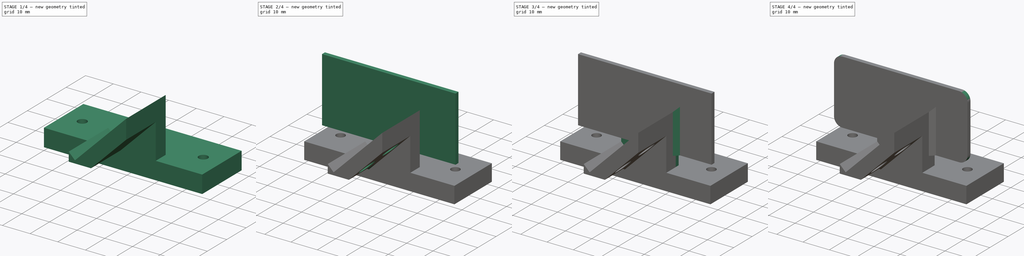
[diagram: build sequence overview — one tinted view per stage of 4, left to right]
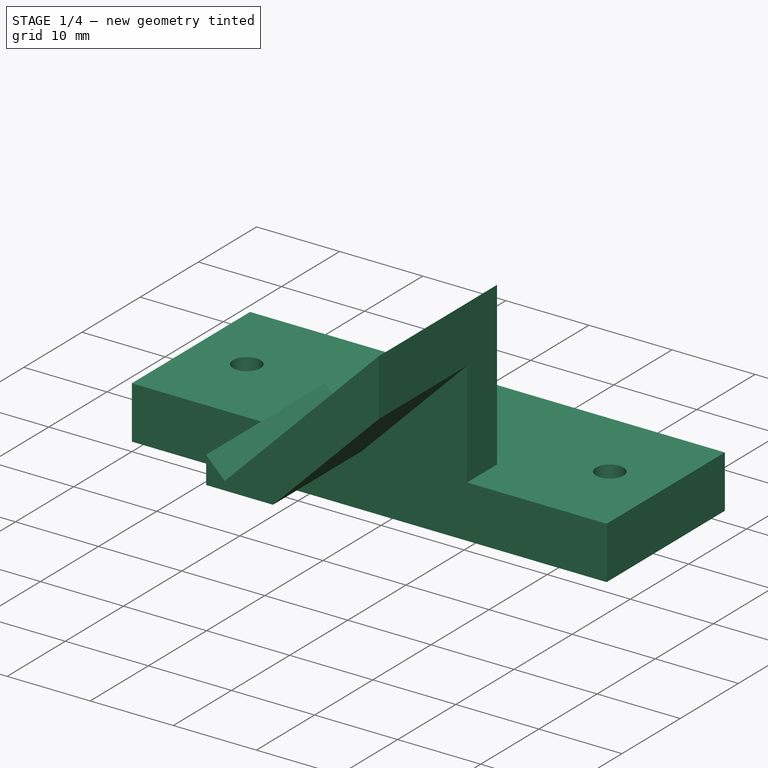
[diagram: stage 1 of 4 — iso view after this stage's code; geometry added in this stage tinted green]
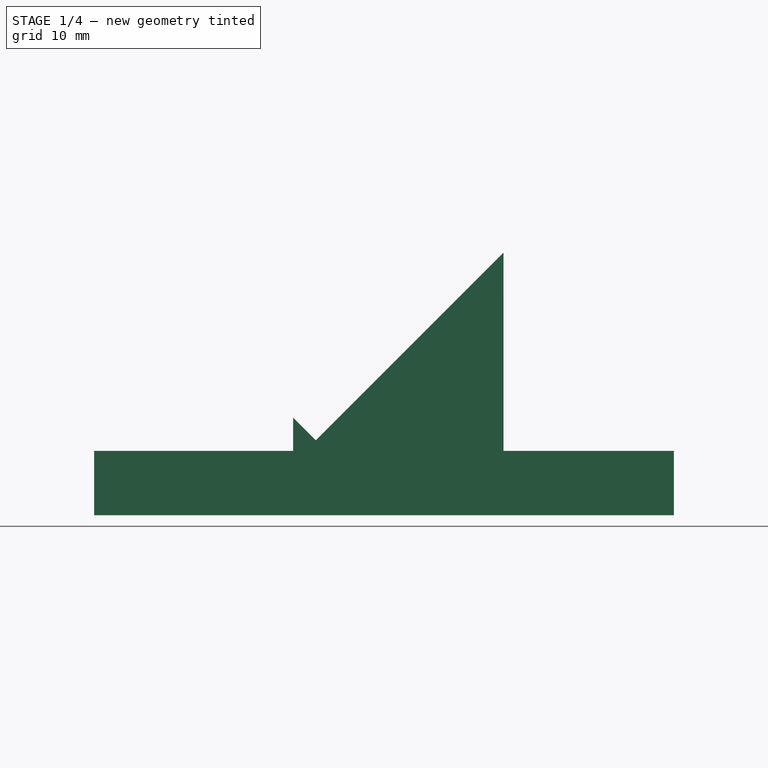
[diagram: stage 1 of 4 — front view after this stage's code; geometry added in this stage tinted green]
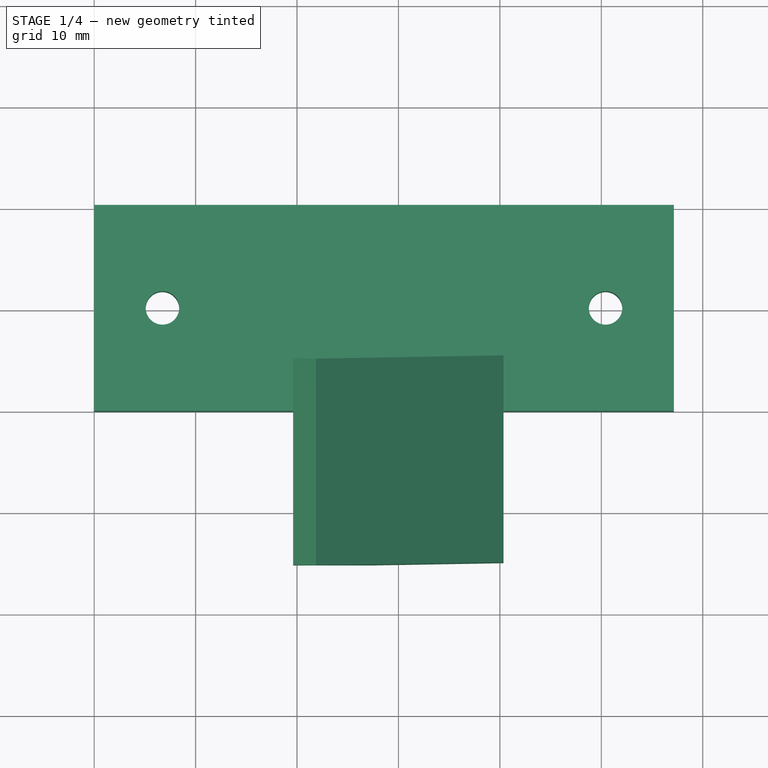
[diagram: stage 1 of 4 — top view after this stage's code; geometry added in this stage tinted green]
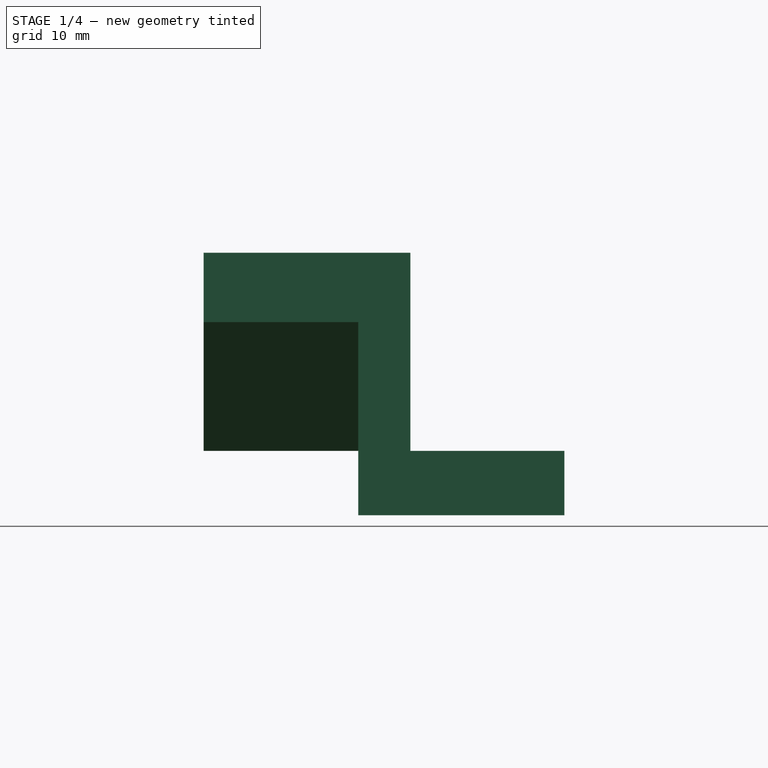
[diagram: stage 1 of 4 — right view after this stage's code; geometry added in this stage tinted green]
FCSTD DOCUMENT  (FreeCAD 0.18R16110 (Git))
Label: Mirror mount with perch v7.6
License: All rights reserved
LicenseURL: http://en.wikipedia.org/wiki/All_rights_reserved
objects: Sketcher::SketchObject×6, PartDesign::Pad×5, PartDesign::Chamfer×4, PartDesign::Fillet×2, Drawing::FeatureViewPart×2, PartDesign::Pocket×1, Spreadsheet::Sheet×1, PartDesign::Body×1, Drawing::FeaturePage×1
note: 25 computed .brp shape members not serialized (recipe doc carries the construction recipe); baked Part::Feature solids carry a one-line shape summary decoded from their .brp

FEATURE [Sketcher::SketchObject] Sketch  label="Mounting platform"
  MapMode = 5
  Support = -> [XY_Plane]
  expr: Constraints[9] = ss.w
  expr: Constraints[16] = (2.25in - 1.72in) / 2
  expr: Constraints[15] = (2.25in - 1.72in) / 2
  expr: Constraints[11] = 0.13in / 2
  sketch-geometry (6):
    g0: LineSegment StartX=0 StartY=20.32 StartZ=0 EndX=57.15 EndY=20.32 EndZ=0
    g1: LineSegment StartX=57.15 StartY=20.32 StartZ=0 EndX=57.15 EndY=0 EndZ=0
    g2: LineSegment StartX=57.15 StartY=0 StartZ=0 EndX=0 EndY=0 EndZ=0
    g3: LineSegment StartX=0 StartY=0 StartZ=0 EndX=0 EndY=20.32 EndZ=0
    g4: Circle CenterX=6.731 CenterY=10.16 CenterZ=0 NormalX=0 NormalY=0 NormalZ=1 AngleXU=0 Radius=1.651
    g5: Circle CenterX=50.419 CenterY=10.16 CenterZ=0 NormalX=0 NormalY=0 NormalZ=1 AngleXU=0 Radius=1.651
  constraints (17):
    c: Coincident(g0,g1)
    c: Coincident(g1,g2)
    c: Coincident(g2,g3)
    c: Coincident(g3,g0)
    c: Horizontal(g0)
    c: Horizontal(g2)
    c: Vertical(g1)
    c: Vertical(g3)
    c: Coincident(g2,g-1)
    c: Distance(g0) = 57.15
    c: Distance(g1) = 20.32
    c: Radius(g4) = 1.651
    c: Equal(g4,g5)
    c: DistanceY(g5,g4) = 0
    c: DistanceY(g-1,g4) = 10.16
    c: DistanceX(g4) = 6.731
    c: DistanceX(g5,g1) = 6.731
FEATURE [PartDesign::Pad] Pad
  Length = 6.35
  Length2 = 99.9998
  Midplane = true
  Profile = -> Sketch
  Type = 0
FEATURE [Sketcher::SketchObject] Sketch003  label="Mirror mount"
  MapMode = 5
  Placement = pos=(0,0,0) rot=(1,0,0;1.5708rad)
  expr: Constraints[7] = ss.xMirror
  expr: Constraints[14] = 3.2mm
  sketch-geometry (7):
    g0: LineSegment StartX=40.3568 StartY=3.175 StartZ=0 EndX=40.3568 EndY=22.7116 EndZ=0
    g1: LineSegment StartX=40.3568 StartY=22.7116 StartZ=0 EndX=21.8575 EndY=4.21226 EndZ=0
    g2: LineSegment StartX=21.8575 StartY=4.21226 StartZ=0 EndX=19.6124 EndY=6.45732 EndZ=0
    g3: LineSegment StartX=19.6124 StartY=6.45732 StartZ=0 EndX=19.6124 EndY=3.175 EndZ=0
    g4: LineSegment [constr] StartX=21.8575 StartY=4.21226 StartZ=0 EndX=19.5947 EndY=6.475 EndZ=0
    g5: LineSegment StartX=19.6124 StartY=3.175 StartZ=0 EndX=40.3568 EndY=3.175 EndZ=0
    g6: LineSegment [constr] StartX=19.5947 StartY=6.475 StartZ=0 EndX=37.5553 EndY=24.4355 EndZ=0
  constraints (21):
    c: Coincident(g2,g3)
    c: Perpendicular(g1,g2)
    c: Distance(g1) = 26.162
    c: Vertical(g3)
    c: Vertical(g0)
    c: Coincident(g1,g4)
    c: Parallel(g4,g2)
    c: DistanceX(g-1,g4) = 19.5947
    c: DistanceY(g3,g4) = 3.3
    c: Coincident(g0,g5)
    c: Coincident(g3,g5)
    c: Horizontal(g5)
    c: DistanceY(g-1,g3) = 3.175
    c: Coincident(g1,g2)
    c: Distance(g4) = 3.2
    c: Angle(g5,g1) = 0.785398
    c: Coincident(g1,g0)
    c: Distance(g2) = 3.175
    c: Distance(g6) = 25.4
    c: Coincident(g6,g4)
    c: Perpendicular(g4,g6)
FEATURE [PartDesign::Pad] Pad002
  BaseFeature = -> Pad
  Length = 15.24
  Length2 = 5.1402
  Profile = -> Sketch003
  Type = 4
  expr: Length2 = ss.dyWall
FEATURE [PartDesign::Chamfer] Chamfer
  Base = -> Pad002 [Edge31]
  BaseFeature = -> Pad002
  Size = 12.7
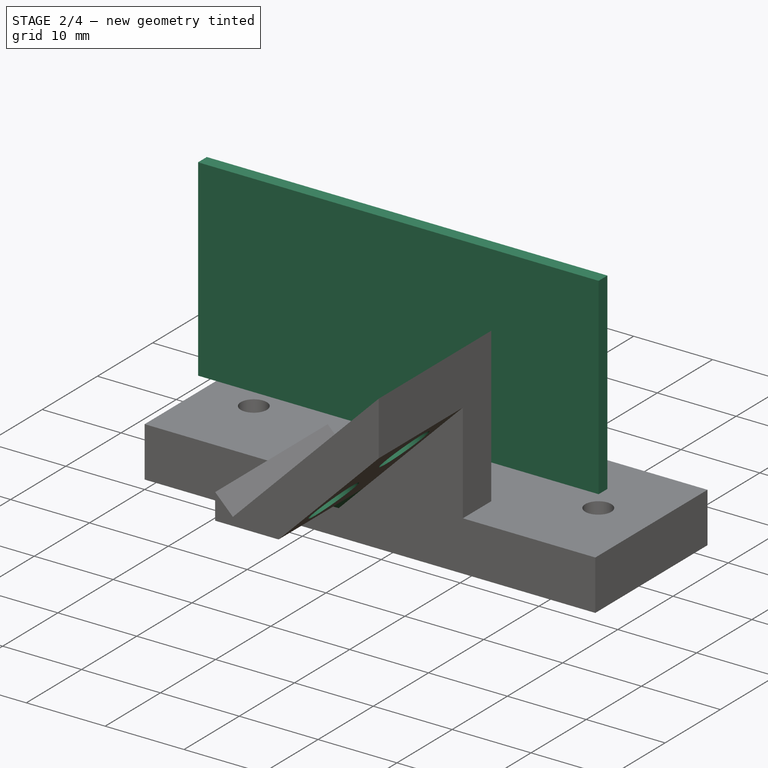
[diagram: stage 2 of 4 — iso view after this stage's code; geometry added in this stage tinted green]
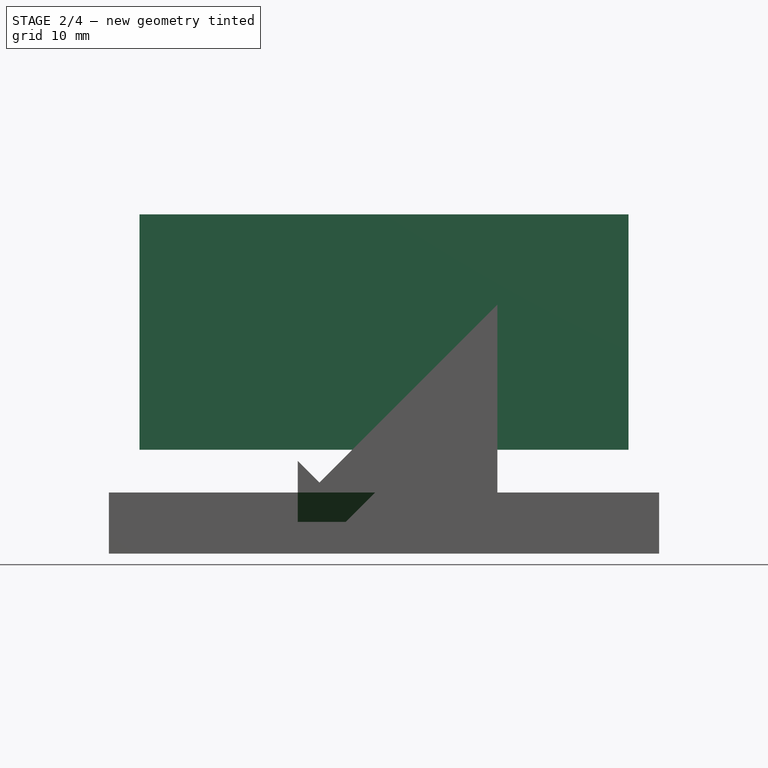
[diagram: stage 2 of 4 — front view after this stage's code; geometry added in this stage tinted green]
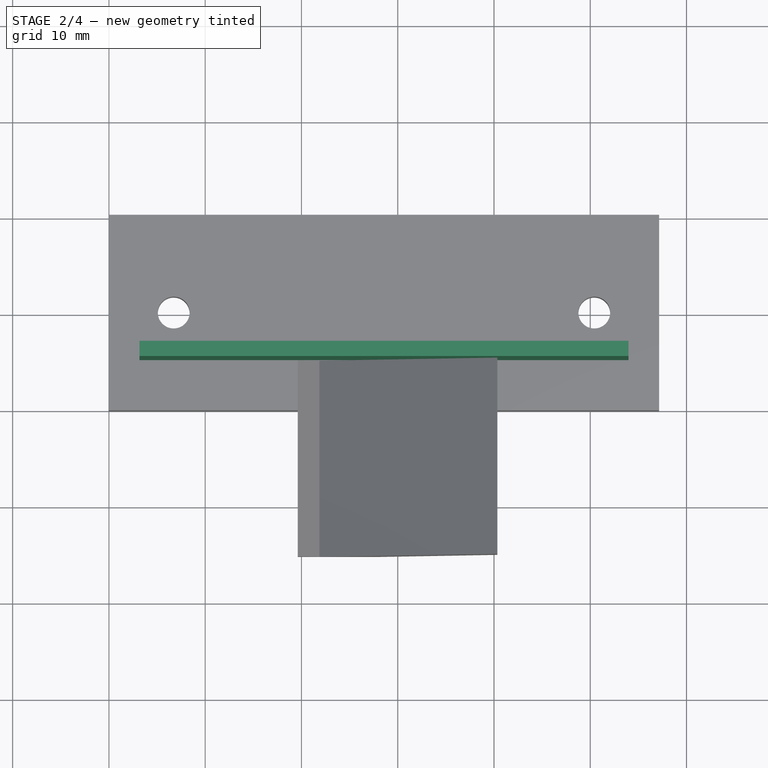
[diagram: stage 2 of 4 — top view after this stage's code; geometry added in this stage tinted green]
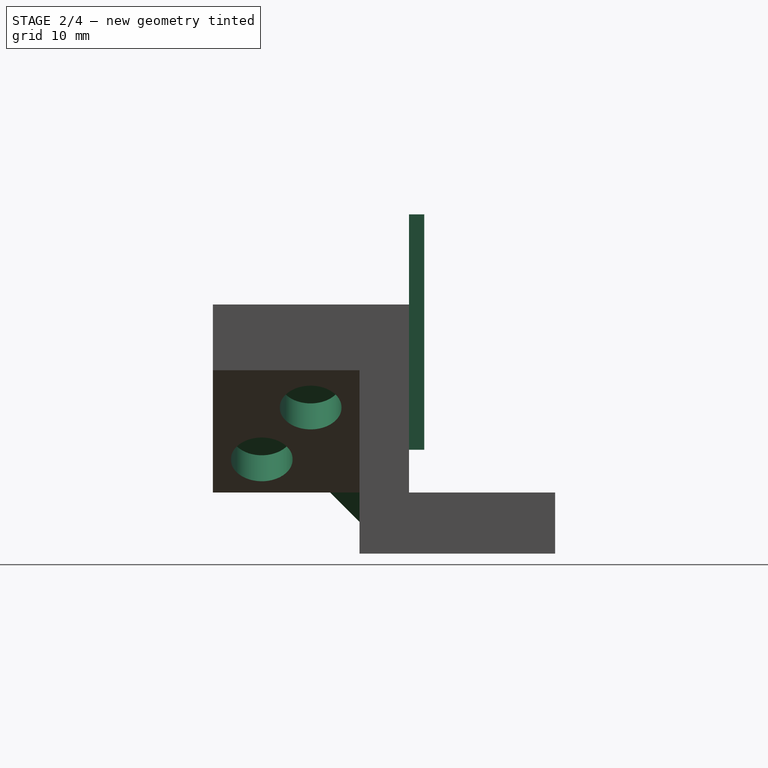
[diagram: stage 2 of 4 — right view after this stage's code; geometry added in this stage tinted green]
FEATURE [PartDesign::Chamfer] Chamfer001
  Base = -> Chamfer [Edge1]
  BaseFeature = -> Chamfer
  Size = 3.048
FEATURE [Sketcher::SketchObject] Sketch004  label="Magnet holes"
  MapMode = 5
  Placement = pos=(12.2409,-5.9e-15,-12.2409) rot=(0.678598,0.678598,0.281085;2.59356rad)
  Support = -> [Chamfer001]
  expr: Constraints[0] = (0.25in + 0.003in) / 2
  sketch-geometry (2):
    g0: Circle CenterX=-10.16 CenterY=26.67 CenterZ=0 NormalX=0 NormalY=0 NormalZ=1 AngleXU=0 Radius=3.2131
    g1: Circle CenterX=-5.08 CenterY=34.29 CenterZ=0 NormalX=0 NormalY=0 NormalZ=1 AngleXU=0 Radius=3.2131
  constraints (6):
    c: Radius(g0) = 3.2131
    c: Equal(g0,g1)
    c: DistanceX(g0,g-1) = 10.16
    c: DistanceY(g-1,g0) = 26.67
    c: DistanceX(g0,g1) = 5.08
    c: DistanceY(g0,g1) = 7.62
FEATURE [PartDesign::Pocket] Pocket001
  BaseFeature = -> Chamfer001
  Length = 3.81762
  Length2 = 99.9998
  Profile = -> Sketch004
  Type = 0
  expr: Length = 0.1903" - 0.04"
FEATURE [Spreadsheet::Sheet] Spreadsheet  label="ss"
  cells = A1=Wall displacement; B1(dyWall)==1mm + 0.163"; A2=Post displacement; B2(dyPost)==1mm + 0.4"; A3=Mount width; B3(w)==2.25"; A4=Wall thickness; B4(Wt)==0.0625"; A5=Wall height; B5(Wh)==1" + 1.5mm + 2mm; A6=Base thickness; B6(Bt)==0.25"; A7=Acrylic gap; B7(AGt)==0.125" + 0.05"; A8=Perch height; B8(Ph)==17.7165mm + 0.5mm + 6.5mm; A9=Mirror start point; B9(xMirror)==(2.25" - 1" / sqrt(2)) / 2
FEATURE [Sketcher::SketchObject] Sketch005  label="Wall"
  AttachmentOffset = pos=(0,0,28.575) rot=(0,0,1;0rad)
  MapMode = 5
  Placement = pos=(28.575,-6.3e-15,6.3e-15) rot=(0.57735,0.57735,0.57735;2.0944rad)
  Support = -> [YZ_Plane]
  expr: Constraints[37] = ss.Bt / 2 + ss.Ph
  expr: Constraints[35] = ss.Bt / 2 + ss.AGt
  expr: Constraints[34] = ss.dyWall
  expr: Constraints[33] = ss.dyPost
  expr: Constraints[27] = ss.Wh + ss.Bt / 2
  expr: Constraints[26] = ss.Wt
  expr: AttachmentOffset.Base.z = ss.w / 2
  sketch-geometry (13):
    g0: LineSegment StartX=6.7277 StartY=25.8405 StartZ=0 EndX=6.7277 EndY=32.075 EndZ=0
    g1: LineSegment StartX=6.7277 StartY=32.075 StartZ=0 EndX=5.1402 EndY=32.075 EndZ=0
    g2: LineSegment StartX=5.1402 StartY=32.075 StartZ=0 EndX=5.1402 EndY=7.62 EndZ=0
    g3: LineSegment StartX=5.1402 StartY=7.62 StartZ=0 EndX=6.7277 EndY=7.62 EndZ=0
    g4: LineSegment StartX=6.7277 StartY=7.62 StartZ=0 EndX=6.7277 EndY=24.253 EndZ=0
    g5: ArcOfCircle [constr] CenterX=6.7277 CenterY=29.479 CenterZ=0 NormalX=0 NormalY=0 NormalZ=1 AngleXU=0 Radius=5.22605 StartAngle=4.71239 EndAngle=6.28318
    g6: ArcOfCircle [constr] CenterX=6.7277 CenterY=29.479 CenterZ=0 NormalX=0 NormalY=0 NormalZ=1 AngleXU=0 Radius=3.63855 StartAngle=4.71239 EndAngle=6.28319
    g7: LineSegment [constr] StartX=11.9537 StartY=29.479 StartZ=0 EndX=11.9537 EndY=27.8915 EndZ=0
    g8: LineSegment [constr] StartX=10.3663 StartY=29.479 StartZ=0 EndX=10.3663 EndY=27.8915 EndZ=0
    g9: LineSegment [constr] StartX=10.3663 StartY=27.8915 StartZ=0 EndX=11.9537 EndY=27.8915 EndZ=0
    g10: LineSegment StartX=6.7277 StartY=25.8405 StartZ=0 EndX=6.7277 EndY=24.253 EndZ=0
    g11: LineSegment [constr] StartX=10.3663 StartY=27.8915 StartZ=0 EndX=11.16 EndY=27.8915 EndZ=0
    g12: LineSegment [constr] StartX=11.16 StartY=27.8915 StartZ=0 EndX=11.9537 EndY=27.8915 EndZ=0
  constraints (38):
    c: Coincident(g0,g1)
    c: Coincident(g1,g2)
    c: Coincident(g2,g3)
    c: Coincident(g3,g4)
    c: Coincident(g0,g6)
    c: PointOnObject(g6,g0)
    c: PointOnObject(g5,g4)
    c: Coincident(g4,g5)
    c: Vertical(g0)
    c: Vertical(g4)
    c: Vertical(g2)
    c: Horizontal(g3)
    c: Horizontal(g1)
    c: Coincident(g5,g7)
    c: Vertical(g7)
    c: Coincident(g5,g6)
    c: DistanceY(g5,g6) = 0
    c: Coincident(g8,g9)
    c: Coincident(g6,g8)
    c: Coincident(g7,g9)
    c: Horizontal(g9)
    c: Vertical(g8)
    c: Coincident(g4,g10)
    c: Coincident(g0,g10)
    c: Equal(g3,g10)
    c: Equal(g10,g9)
    c: DistanceX(g3,g3) = 1.5875
    c: DistanceY(g1) = 32.075
    c: Coincident(g11,g12)
    c: Coincident(g8,g11)
    c: Coincident(g12,g7)
    c: Equal(g11,g12)
    c: PointOnObject(g11,g9)
    c: DistanceX(g11) = 11.16
    c: DistanceX(g1) = 5.1402
    c: DistanceY(g2) = 7.62
    c: Equal(g9,g8)
    c: DistanceY(g12) = 27.8915
FEATURE [PartDesign::Pad] Pad003
  BaseFeature = -> Pocket001
  Length = 50.8
  Length2 = 100
  Midplane = true
  Profile = -> Sketch005
  Type = 0
  expr: Length = 2"
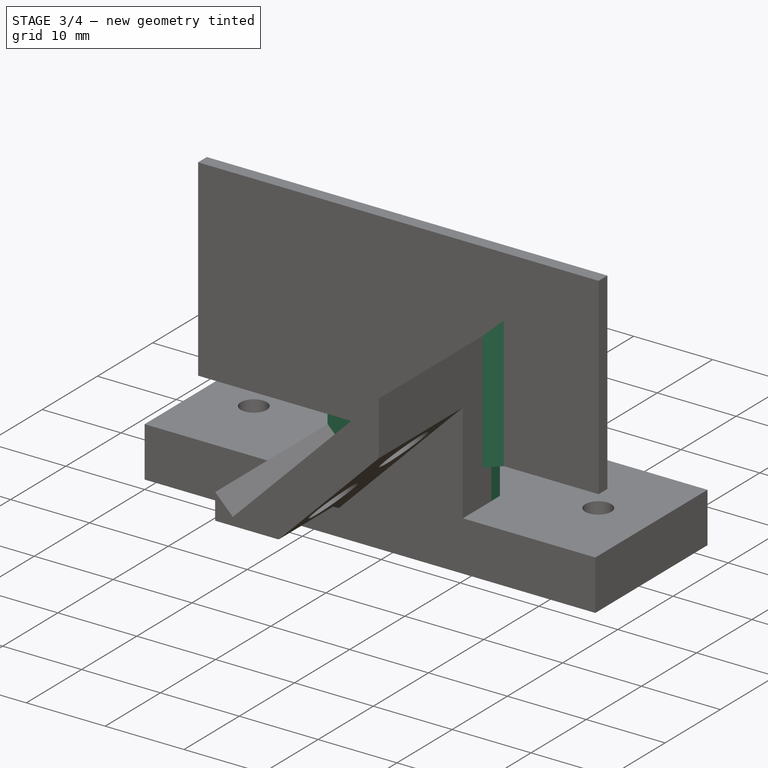
[diagram: stage 3 of 4 — iso view after this stage's code; geometry added in this stage tinted green]
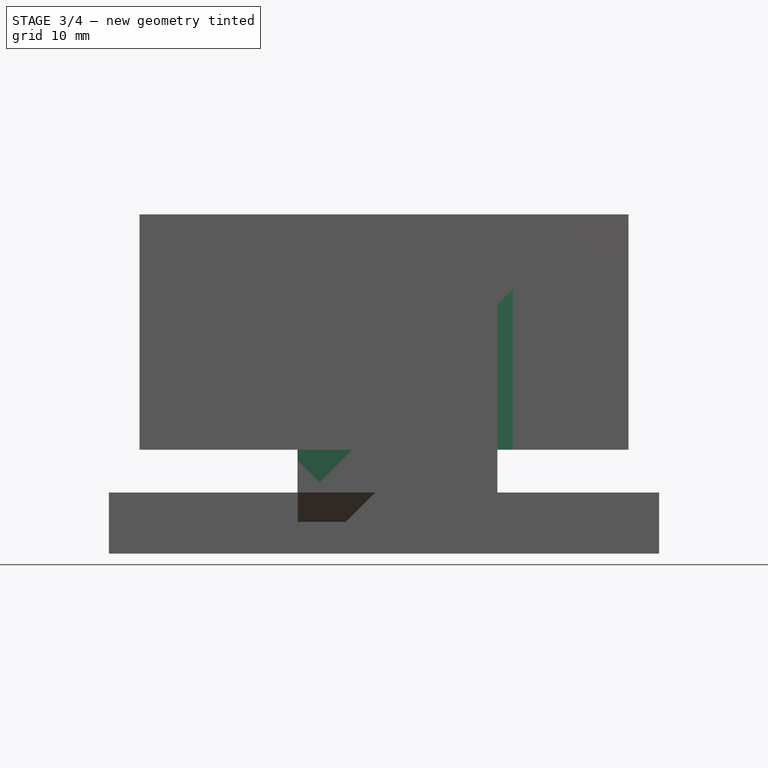
[diagram: stage 3 of 4 — front view after this stage's code; geometry added in this stage tinted green]
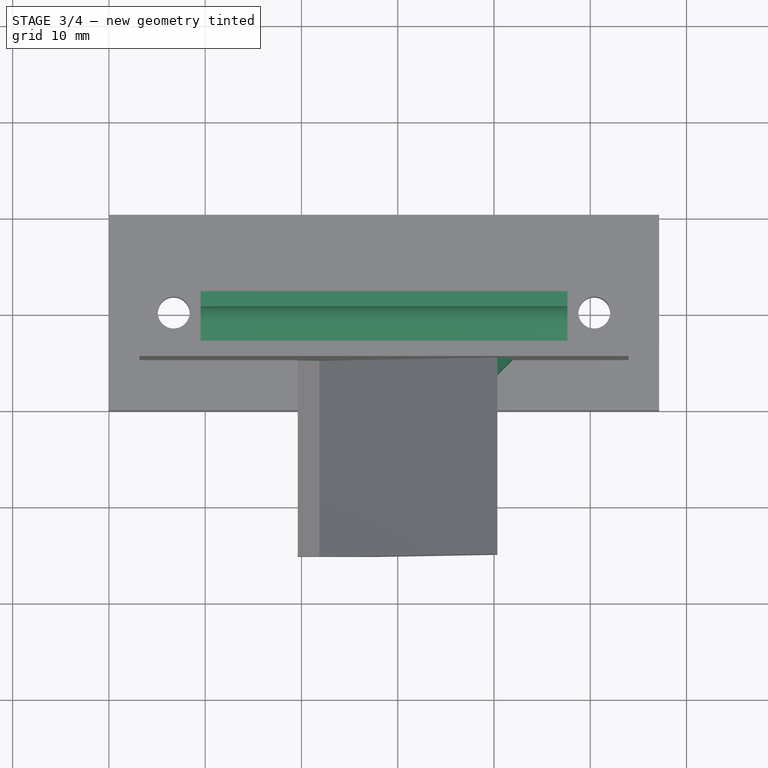
[diagram: stage 3 of 4 — top view after this stage's code; geometry added in this stage tinted green]
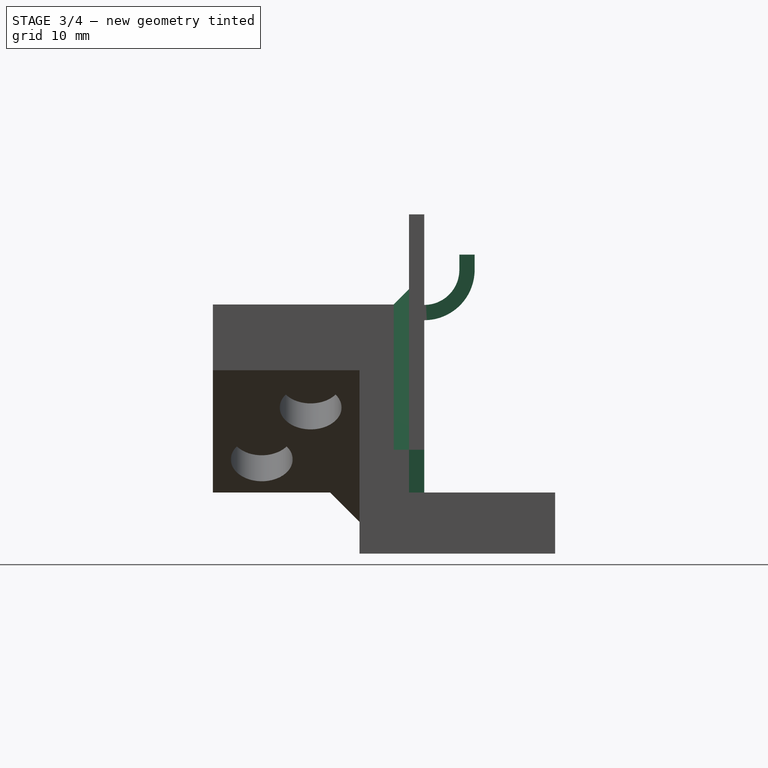
[diagram: stage 3 of 4 — right view after this stage's code; geometry added in this stage tinted green]
FEATURE [Sketcher::SketchObject] Sketch006  label="Wall bottom"
  MapMode = 5
  Placement = pos=(0,5.1402,-1e-15) rot=(0,0.707107,0.707107;3.14159rad)
  expr: Constraints[11] = ss.AGt
  expr: Constraints[10] = (1.03" + 0.125") / sqrt(2)
  expr: Constraints[9] = ss.Bt / 2
  expr: Constraints[7] = -ss.xMirror
  sketch-geometry (4):
    g0: LineSegment StartX=-40.3391 StartY=7.62 StartZ=0 EndX=-19.5947 EndY=7.62 EndZ=0
    g1: LineSegment StartX=-19.5947 StartY=3.175 StartZ=0 EndX=-40.3391 EndY=3.175 EndZ=0
    g2: LineSegment StartX=-40.3391 StartY=3.175 StartZ=0 EndX=-40.3391 EndY=7.62 EndZ=0
    g3: LineSegment StartX=-19.5947 StartY=7.62 StartZ=0 EndX=-19.5947 EndY=3.175 EndZ=0
  constraints (12):
    c: Coincident(g1,g2)
    c: Coincident(g2,g0)
    c: Horizontal(g0)
    c: Horizontal(g1)
    c: Vertical(g2)
    c: Coincident(g0,g3)
    c: Coincident(g1,g3)
    c: DistanceX(g1) = -19.5947
    c: Vertical(g3)
    c: DistanceY(g1) = 3.175
    c: DistanceX(g1,g1) = 20.7444
    c: DistanceY(g2,g2) = 4.445
FEATURE [PartDesign::Pad] Pad004
  BaseFeature = -> Pad003
  Length = 1.5875
  Length2 = 100
  Profile = -> Sketch006
  Type = 0
  expr: Length = ss.Wt
FEATURE [Sketcher::SketchObject] Sketch007  label="Perch"
  AttachmentOffset = pos=(0,0,28.575) rot=(0,0,1;0rad)
  MapMode = 5
  Placement = pos=(28.575,-6.3e-15,6.3e-15) rot=(0.57735,0.57735,0.57735;2.0944rad)
  Support = -> [YZ_Plane]
  expr: Constraints[36] = ss.Bt / 2 + ss.Ph
  expr: Constraints[33] = ss.Bt / 2 + 0.125" + 0.01"
  expr: Constraints[32] = ss.dyWall
  expr: Constraints[31] = ss.dyPost
  expr: Constraints[25] = ss.Wh + ss.Bt / 2
  expr: Constraints[24] = ss.Wt
  expr: AttachmentOffset.Base.z = ss.w / 2
  sketch-geometry (13):
    g0: LineSegment [constr] StartX=6.7277 StartY=22.6655 StartZ=0 EndX=6.7277 EndY=32.075 EndZ=0
    g1: LineSegment [constr] StartX=6.7277 StartY=32.075 StartZ=0 EndX=5.1402 EndY=32.075 EndZ=0
    g2: LineSegment [constr] StartX=5.1402 StartY=32.075 StartZ=0 EndX=5.1402 EndY=6.604 EndZ=0
    g3: LineSegment [constr] StartX=5.1402 StartY=6.604 StartZ=0 EndX=6.7277 EndY=6.604 EndZ=0
    g4: LineSegment [constr] StartX=6.7277 StartY=6.604 StartZ=0 EndX=6.7277 EndY=21.078 EndZ=0
    g5: ArcOfCircle CenterX=6.7277 CenterY=26.304 CenterZ=0 NormalX=0 NormalY=0 NormalZ=1 AngleXU=0 Radius=5.22605 StartAngle=4.71239 EndAngle=6.28319
    g6: ArcOfCircle CenterX=6.7277 CenterY=26.304 CenterZ=0 NormalX=0 NormalY=0 NormalZ=1 AngleXU=0 Radius=3.63855 StartAngle=4.71239 EndAngle=6.28319
    g7: LineSegment StartX=11.9537 StartY=26.304 StartZ=0 EndX=11.9537 EndY=27.8915 EndZ=0
    g8: LineSegment StartX=10.3662 StartY=26.304 StartZ=0 EndX=10.3662 EndY=27.8915 EndZ=0
    g9: LineSegment StartX=10.3662 StartY=27.8915 StartZ=0 EndX=11.9537 EndY=27.8915 EndZ=0
    g10: LineSegment StartX=6.7277 StartY=22.6655 StartZ=0 EndX=6.7277 EndY=21.078 EndZ=0
    g11: LineSegment [constr] StartX=10.3662 StartY=27.8915 StartZ=0 EndX=11.16 EndY=27.8915 EndZ=0
    g12: LineSegment [constr] StartX=11.16 StartY=27.8915 StartZ=0 EndX=11.9537 EndY=27.8915 EndZ=0
  constraints (38):
    c: Coincident(g0,g1)
    c: Coincident(g1,g2)
    c: Coincident(g2,g3)
    c: Coincident(g3,g4)
    c: Coincident(g0,g6)
    c: PointOnObject(g6,g0)
    c: PointOnObject(g5,g4)
    c: Coincident(g4,g5)
    c: Vertical(g0)
    c: Vertical(g4)
    c: Vertical(g2)
    c: Horizontal(g3)
    c: Horizontal(g1)
    c: Coincident(g5,g7)
    c: Coincident(g5,g6)
    c: DistanceY(g5,g6) = 0
    c: Coincident(g8,g9)
    c: Coincident(g6,g8)
    c: Coincident(g7,g9)
    c: Horizontal(g9)
    c: Coincident(g4,g10)
    c: Coincident(g0,g10)
    c: Equal(g3,g10)
    c: Equal(g10,g9)
    c: DistanceX(g3,g3) = 1.5875
    c: DistanceY(g1) = 32.075
    c: Coincident(g11,g12)
    c: Coincident(g8,g11)
    c: Coincident(g12,g7)
    c: Equal(g11,g12)
    c: PointOnObject(g11,g9)
    c: DistanceX(g11) = 11.16
    c: DistanceX(g1) = 5.1402
    c: DistanceY(g2) = 6.604
    c: Equal(g8,g9)
    c: Vertical(g8)
    c: DistanceY(g-1,g8) = 27.8915
    c: Vertical(g7)
FEATURE [PartDesign::Pad] Pad005
  BaseFeature = -> Pad004
  Length = 38.1
  Length2 = 100
  Midplane = true
  Profile = -> Sketch007
  Type = 0
FEATURE [PartDesign::Chamfer] Chamfer002
  Base = -> Pad005 [Edge22]
  BaseFeature = -> Pad005
  Size = 1.5875
  expr: Size = ss.Wt
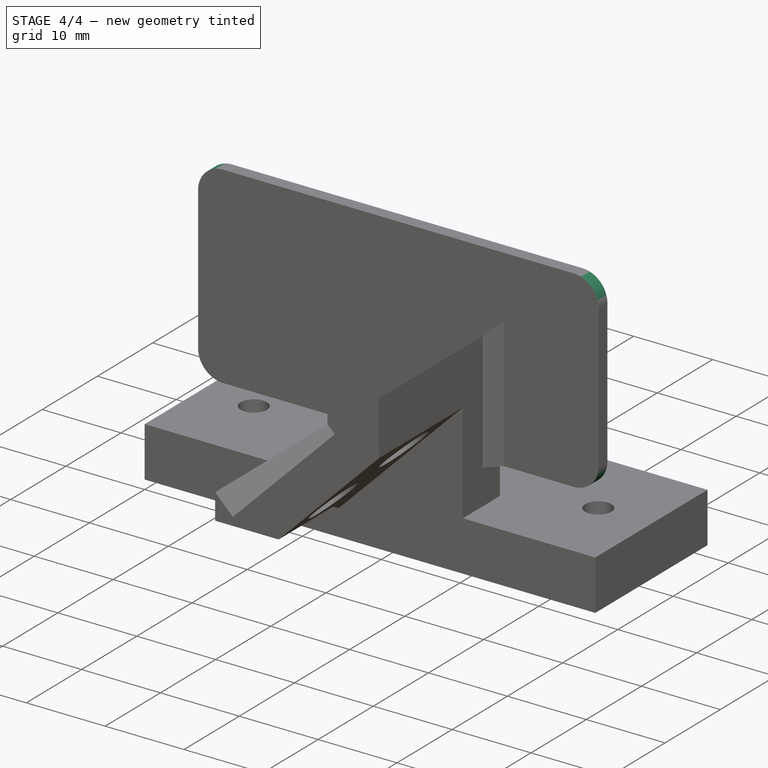
[diagram: stage 4 of 4 — iso view after this stage's code; geometry added in this stage tinted green]
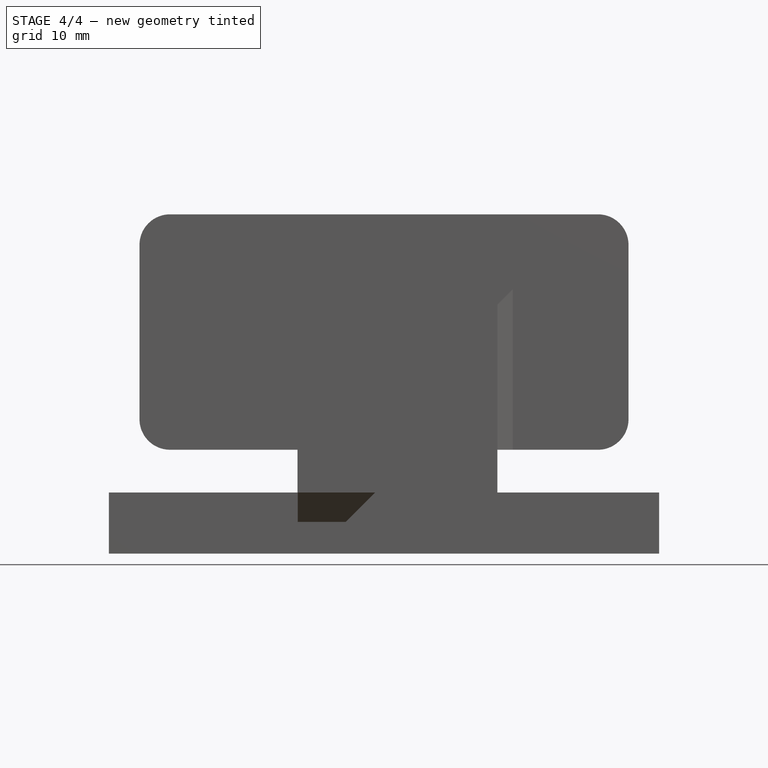
[diagram: stage 4 of 4 — front view after this stage's code; geometry added in this stage tinted green]
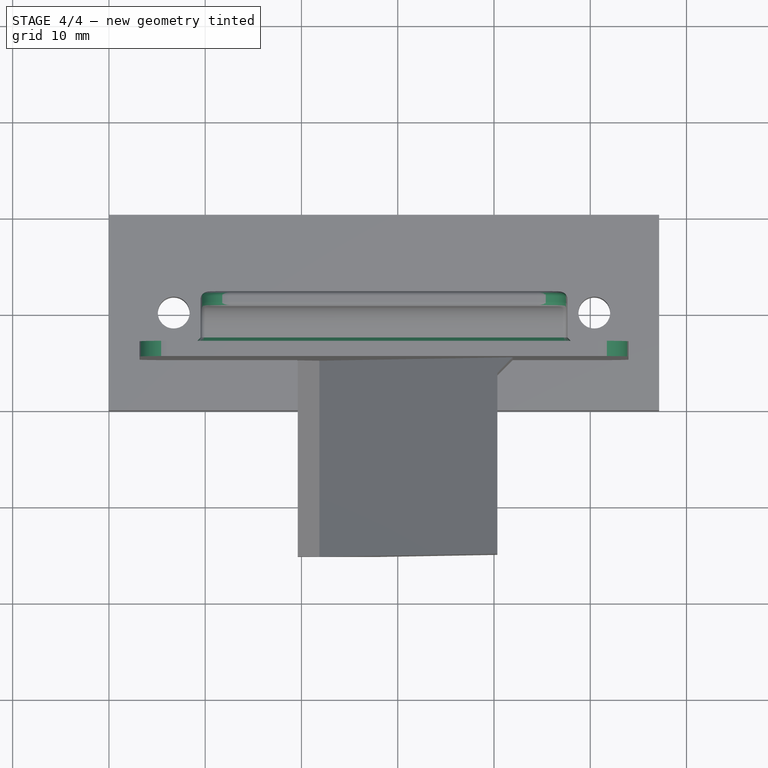
[diagram: stage 4 of 4 — top view after this stage's code; geometry added in this stage tinted green]
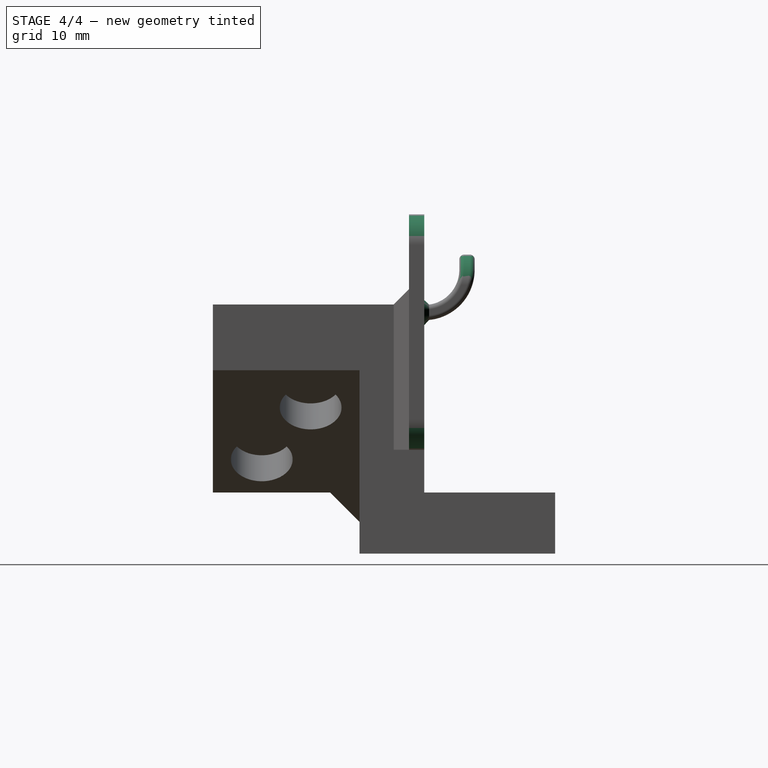
[diagram: stage 4 of 4 — right view after this stage's code; geometry added in this stage tinted green]
FEATURE [PartDesign::Fillet] Fillet
  Base = -> Chamfer002 [Edge64,Edge22,Edge94,Edge92,Edge99,Edge105]
  BaseFeature = -> Chamfer002
  Radius = 3.175
  expr: Radius = 0.125"
FEATURE [PartDesign::Fillet] Fillet001
  Base = -> Fillet [Edge111,Edge114]
  BaseFeature = -> Fillet
  Radius = 0.499999
FEATURE [PartDesign::Chamfer] Chamfer003
  Base = -> Fillet001 [Edge4]
  BaseFeature = -> Fillet001
  Size = 0.499999
FEATURE [PartDesign::Body] Body
  Group = -> [Sketch,Pad,Sketch003,Pad002,Chamfer,Chamfer001,Sketch004,Pocket001,Sketch005,Pad003,Sketch006,Pad004,Sketch007,Pad005,Chamfer002,Fillet,Fillet001,Chamfer003]
  Origin = -> Origin
  Tip = -> Chamfer003
FEATURE [Drawing::FeatureViewPart] Ortho  label="Ortho_0_0"
  Direction = (-1,0,0)
  HiddenWidth = 0.15
  LineWidth = 0.35
  Rotation = 90
  Scale = 3
  ShowHiddenLines = false
  ShowSmoothLines = false
  Source = -> Chamfer003
  Tolerance = 0.05
  ViewResult = <blob: 5157 chars omitted>
  Visible = true
  X = 323.657
  Y = 161.85
FEATURE [Drawing::FeatureViewPart] Ortho001  label="Ortho_-1_0"
  Direction = (0,1,0)
  HiddenWidth = 0.15
  LineWidth = 0.35
  Rotation = -90
  Scale = 3
  ShowHiddenLines = false
  ShowSmoothLines = false
  Source = -> Chamfer003
  Tolerance = 0.05
  ViewResult = <blob: 4299 chars omitted>
  Visible = true
  X = 222.073
  Y = 161.85
FEATURE [Drawing::FeaturePage] Page
  EditableTexts = AUTHOR NAME | CREATION DATE | SUPERVISOR NAME | CHECK DATE | SCALE | WEIGHT | NUMBER | SHEET | TITLE | SUBTITLE
  Group = -> [Ortho,Ortho001]
  Template = C:/Program Files/FreeCAD 0.18/data/Mod/Drawing/Templates/A3_Landscape.svg
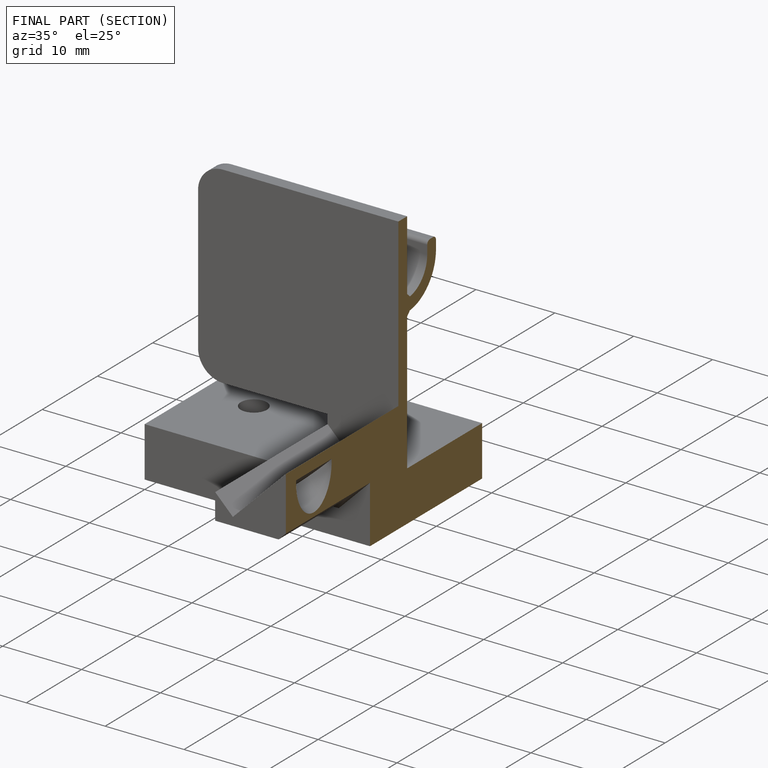
[diagram: finished part — half-section view (interior)]
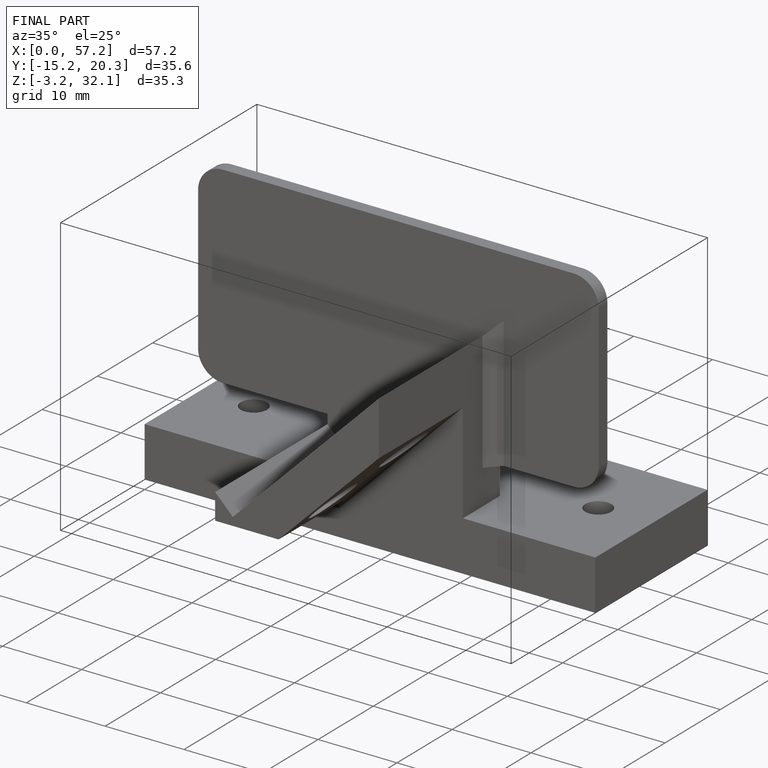
[diagram: finished part — iso view with bounding-box wireframe]
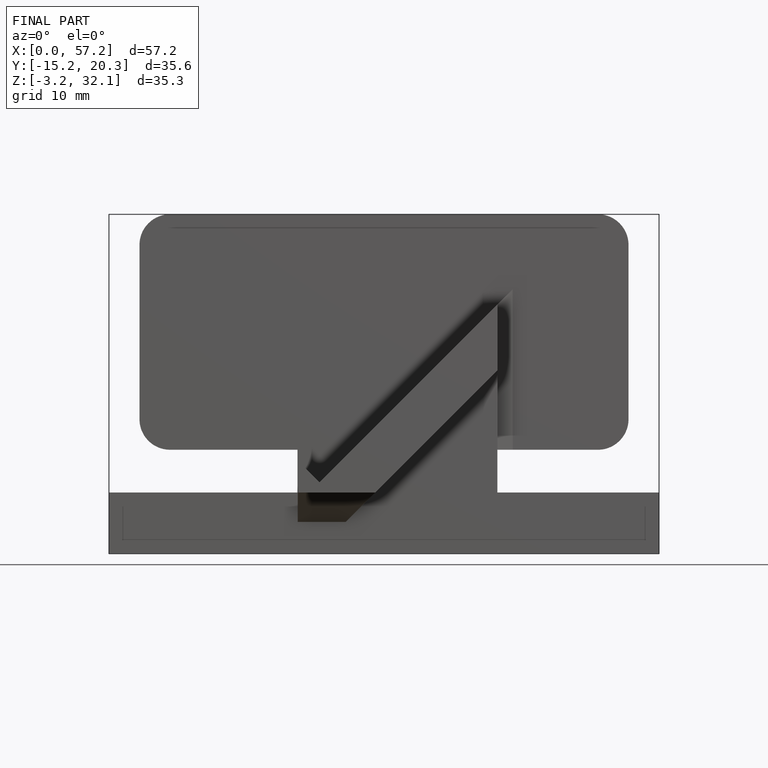
[diagram: finished part — front view with bounding-box wireframe]
